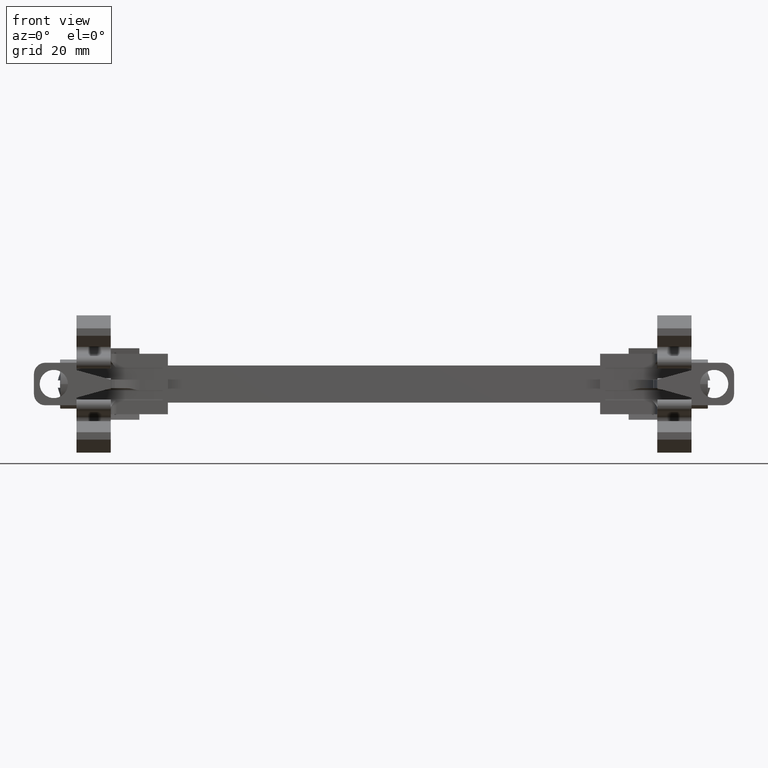
[diagram: clean part render]
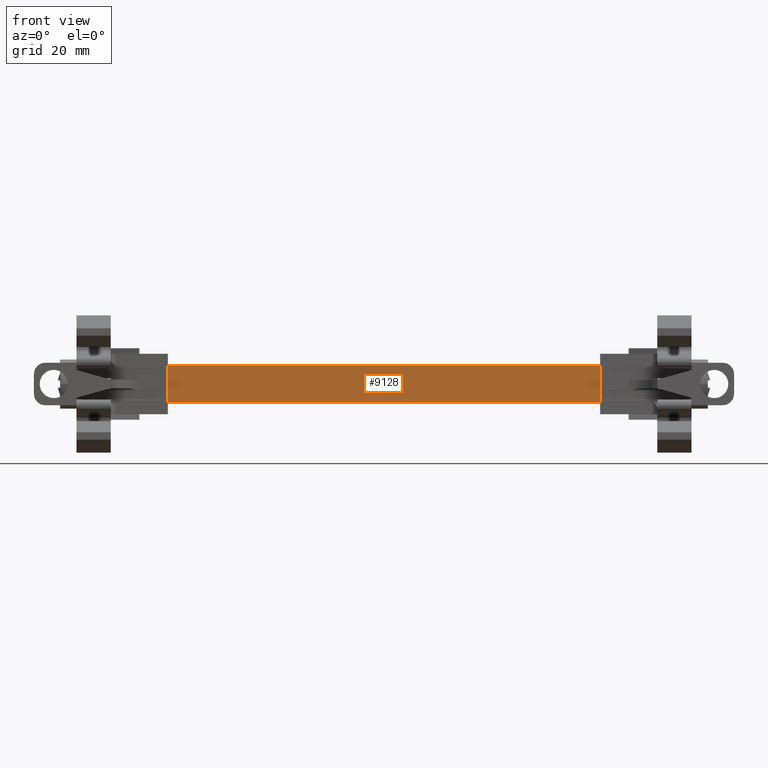
[diagram: same view with one face highlighted and labeled with its STEP entity id]
A machine part, front view. The second image highlights one B-rep face of the part: STEP entity #9128.
In plain terms, the highlighted planar face has unit normal (-0, 1, -0).
Its self-contained STEP definition (entity closure, byte-faithful):
#3527 = AXIS2_PLACEMENT_3D ( 'NONE', #24050, #24036, #24047 ) ;
#4789 = CARTESIAN_POINT ( 'NONE',  ( -69.80539649368603200, -45.46391012921935700, 92.75723811290720300 ) ) ;
#4790 = DIRECTION ( 'NONE',  ( -1.221870687644392800E-042, 5.494598894041890000E-029, 1.000000000000000000 ) ) ;
#4797 = LINE ( 'NONE', #4827, #23682 ) ;
#4812 = DIRECTION ( 'NONE',  ( -1.000000000000000000, -2.223766850332492100E-014, 0.0000000000000000000 ) ) ;
#4827 = CARTESIAN_POINT ( 'NONE',  ( -118.1053964936865600, -45.46391012922043700, 99.25723811290724500 ) ) ;
#4830 = LINE ( 'NONE', #4789, #23701 ) ;
#9128 = ADVANCED_FACE ( 'NONE', ( #24068 ), #24041, .F. ) ;
#10126 = EDGE_LOOP ( 'NONE', ( #19044, #18996, #18968, #19001 ) ) ;
#12175 = CARTESIAN_POINT ( 'NONE',  ( -118.1053964936865700, -45.46391012922023100, 92.75723811290703200 ) ) ;
#12179 = CARTESIAN_POINT ( 'NONE',  ( -118.1053964936866100, -45.46391012922023100, 99.25723811290701800 ) ) ;
#12182 = CARTESIAN_POINT ( 'NONE',  ( -42.50539649368585800, -45.46391012921906600, 92.75723811290728800 ) ) ;
#12214 = CARTESIAN_POINT ( 'NONE',  ( -42.50539649368585100, -45.46391012921924400, 99.25723811290726000 ) ) ;
#12966 = DIRECTION ( 'NONE',  ( -1.000000000000000000, 0.0000000000000000000, -4.941704111849990700E-015 ) ) ;
#12970 = LINE ( 'NONE', #12985, #23608 ) ;
#12985 = CARTESIAN_POINT ( 'NONE',  ( -69.80539649368628800, -45.46391012921959900, 99.25723811290724500 ) ) ;
#13015 = DIRECTION ( 'NONE',  ( 1.221870687644392800E-042, -5.494598894041890000E-029, -1.000000000000000000 ) ) ;
#13022 = CARTESIAN_POINT ( 'NONE',  ( -42.50539649368585100, -45.46391012921876000, 99.25723811290724500 ) ) ;
#13046 = LINE ( 'NONE', #13022, #23637 ) ;
#15917 = EDGE_CURVE ( 'NONE', #17720, #17686, #12970, .T. ) ;
#15939 = EDGE_CURVE ( 'NONE', #17720, #17699, #13046, .T. ) ;
#15967 = EDGE_CURVE ( 'NONE', #17693, #17686, #4797, .T. ) ;
#15978 = EDGE_CURVE ( 'NONE', #17699, #17693, #4830, .T. ) ;
#17686 = VERTEX_POINT ( 'NONE', #12179 ) ;
#17693 = VERTEX_POINT ( 'NONE', #12175 ) ;
#17699 = VERTEX_POINT ( 'NONE', #12182 ) ;
#17720 = VERTEX_POINT ( 'NONE', #12214 ) ;
#18968 = ORIENTED_EDGE ( 'NONE', *, *, #15939, .F. ) ;
#18996 = ORIENTED_EDGE ( 'NONE', *, *, #15978, .F. ) ;
#19001 = ORIENTED_EDGE ( 'NONE', *, *, #15917, .T. ) ;
#19044 = ORIENTED_EDGE ( 'NONE', *, *, #15967, .F. ) ;
#23608 = VECTOR ( 'NONE', #12966, 1000.000000000000000 ) ;
#23637 = VECTOR ( 'NONE', #13015, 1000.000000000000000 ) ;
#23682 = VECTOR ( 'NONE', #4790, 1000.000000000000000 ) ;
#23701 = VECTOR ( 'NONE', #4812, 1000.000000000000000 ) ;
#24036 = DIRECTION ( 'NONE',  ( -2.223766850332492100E-014, 1.000000000000000000, -5.494598894041890000E-029 ) ) ;
#24041 = PLANE ( 'NONE',  #3527 ) ;
#24047 = DIRECTION ( 'NONE',  ( -1.000000000000000000, -2.223766850332492100E-014, 0.0000000000000000000 ) ) ;
#24050 = CARTESIAN_POINT ( 'NONE',  ( -69.80539649368603200, -45.46391012921935700, 99.25723811290724500 ) ) ;
#24068 = FACE_OUTER_BOUND ( 'NONE', #10126, .T. ) ;